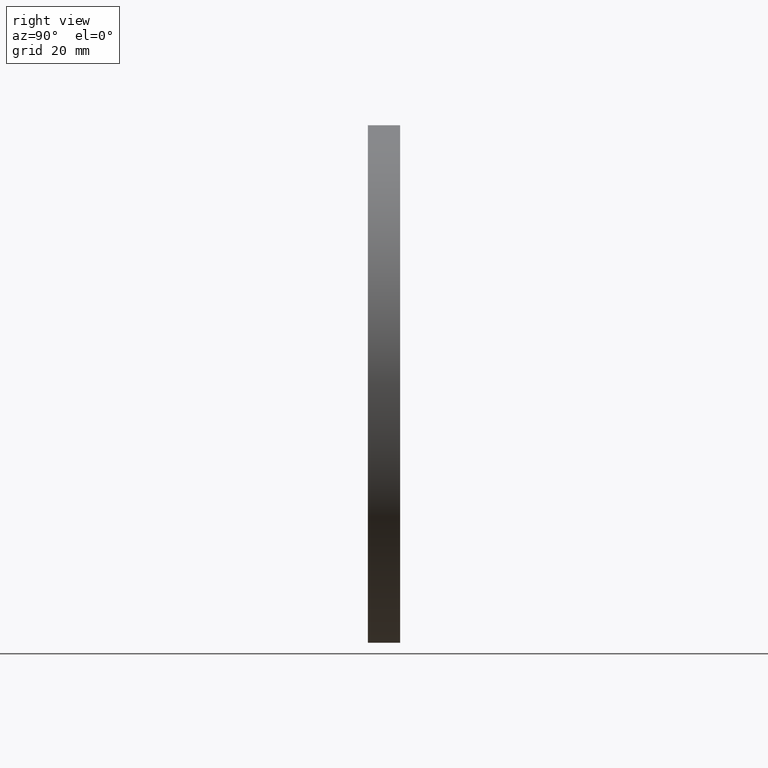
[diagram: clean part render]
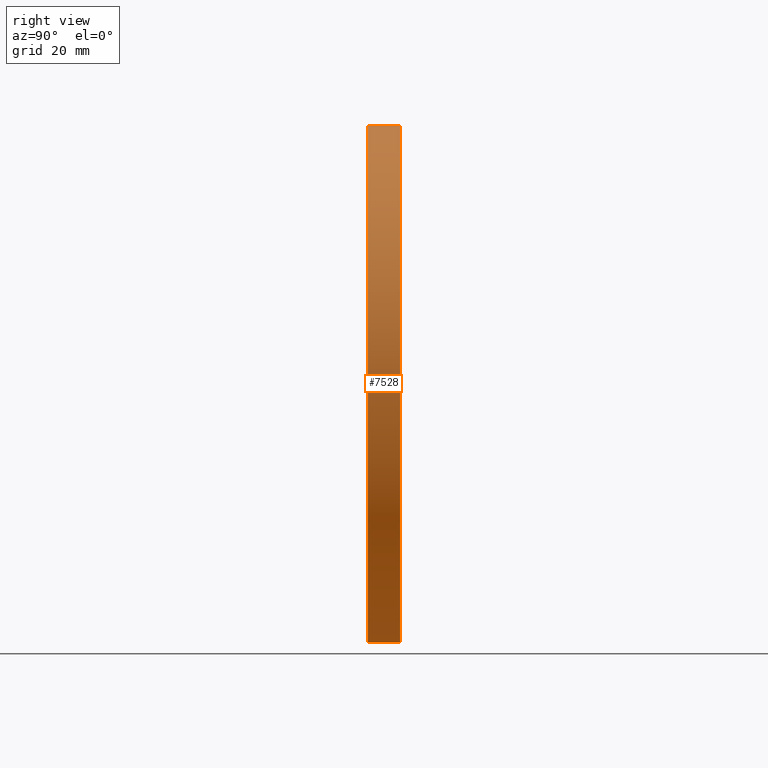
[diagram: same view with one face highlighted and labeled with its STEP entity id]
A machine part, right view. The second image highlights one B-rep face of the part: STEP entity #7528.
In plain terms, the highlighted cylindrical surface (partial cylindrical patch) has radius 80 mm, axis along (-0, -1, -0).
Its self-contained STEP definition (entity closure, byte-faithful):
#507 = VERTEX_POINT ( 'NONE', #9119 ) ;
#1574 = ORIENTED_EDGE ( 'NONE', *, *, #8912, .F. ) ;
#2587 = LINE ( 'NONE', #3330, #3681 ) ;
#2665 = EDGE_LOOP ( 'NONE', ( #1574, #4908, #7183, #5124 ) ) ;
#3330 = CARTESIAN_POINT ( 'NONE',  ( 9.797174393178826100E-015, 10.00000000000000000, 80.00000000000000000 ) ) ;
#3681 = VECTOR ( 'NONE', #9419, 1000.000000000000000 ) ;
#4001 = FACE_OUTER_BOUND ( 'NONE', #2665, .T. ) ;
#4381 = LINE ( 'NONE', #9825, #8730 ) ;
#4591 = DIRECTION ( 'NONE',  ( 0.0000000000000000000, 0.0000000000000000000, 1.000000000000000000 ) ) ;
#4678 = VERTEX_POINT ( 'NONE', #10873 ) ;
#4790 = DIRECTION ( 'NONE',  ( -0.0000000000000000000, -1.000000000000000000, -0.0000000000000000000 ) ) ;
#4908 = ORIENTED_EDGE ( 'NONE', *, *, #10075, .T. ) ;
#5098 = CARTESIAN_POINT ( 'NONE',  ( 0.0000000000000000000, 10.00000000000000000, 0.0000000000000000000 ) ) ;
#5124 = ORIENTED_EDGE ( 'NONE', *, *, #9050, .F. ) ;
#5636 = CARTESIAN_POINT ( 'NONE',  ( 9.797174393178826100E-015, 0.0000000000000000000, 80.00000000000000000 ) ) ;
#5637 = CYLINDRICAL_SURFACE ( 'NONE', #10205, 80.00000000000000000 ) ;
#5775 = VERTEX_POINT ( 'NONE', #5636 ) ;
#6222 = EDGE_CURVE ( 'NONE', #5775, #507, #10506, .T. ) ;
#6723 = DIRECTION ( 'NONE',  ( 0.0000000000000000000, 0.0000000000000000000, 1.000000000000000000 ) ) ;
#6962 = AXIS2_PLACEMENT_3D ( 'NONE', #5098, #7644, #6723 ) ;
#7183 = ORIENTED_EDGE ( 'NONE', *, *, #6222, .T. ) ;
#7184 = CARTESIAN_POINT ( 'NONE',  ( 0.0000000000000000000, 0.0000000000000000000, 0.0000000000000000000 ) ) ;
#7417 = CARTESIAN_POINT ( 'NONE',  ( 0.0000000000000000000, 10.00000000000000000, -80.00000000000000000 ) ) ;
#7505 = CARTESIAN_POINT ( 'NONE',  ( 0.0000000000000000000, 10.00000000000000000, 0.0000000000000000000 ) ) ;
#7528 = ADVANCED_FACE ( 'NONE', ( #4001 ), #5637, .T. ) ;
#7644 = DIRECTION ( 'NONE',  ( 0.0000000000000000000, 1.000000000000000000, 0.0000000000000000000 ) ) ;
#8211 = CIRCLE ( 'NONE', #6962, 80.00000000000000000 ) ;
#8730 = VECTOR ( 'NONE', #4790, 1000.000000000000000 ) ;
#8912 = EDGE_CURVE ( 'NONE', #4678, #9034, #8211, .T. ) ;
#9034 = VERTEX_POINT ( 'NONE', #7417 ) ;
#9050 = EDGE_CURVE ( 'NONE', #9034, #507, #4381, .T. ) ;
#9119 = CARTESIAN_POINT ( 'NONE',  ( 0.0000000000000000000, 0.0000000000000000000, -80.00000000000000000 ) ) ;
#9199 = DIRECTION ( 'NONE',  ( -0.0000000000000000000, -1.000000000000000000, -0.0000000000000000000 ) ) ;
#9419 = DIRECTION ( 'NONE',  ( -0.0000000000000000000, -1.000000000000000000, -0.0000000000000000000 ) ) ;
#9566 = AXIS2_PLACEMENT_3D ( 'NONE', #7184, #9783, #4591 ) ;
#9783 = DIRECTION ( 'NONE',  ( 0.0000000000000000000, 1.000000000000000000, 0.0000000000000000000 ) ) ;
#9825 = CARTESIAN_POINT ( 'NONE',  ( 0.0000000000000000000, 10.00000000000000000, -80.00000000000000000 ) ) ;
#10075 = EDGE_CURVE ( 'NONE', #4678, #5775, #2587, .T. ) ;
#10124 = DIRECTION ( 'NONE',  ( 0.0000000000000000000, 0.0000000000000000000, -1.000000000000000000 ) ) ;
#10205 = AXIS2_PLACEMENT_3D ( 'NONE', #7505, #9199, #10124 ) ;
#10506 = CIRCLE ( 'NONE', #9566, 80.00000000000000000 ) ;
#10873 = CARTESIAN_POINT ( 'NONE',  ( 9.797174393178826100E-015, 10.00000000000000000, 80.00000000000000000 ) ) ;